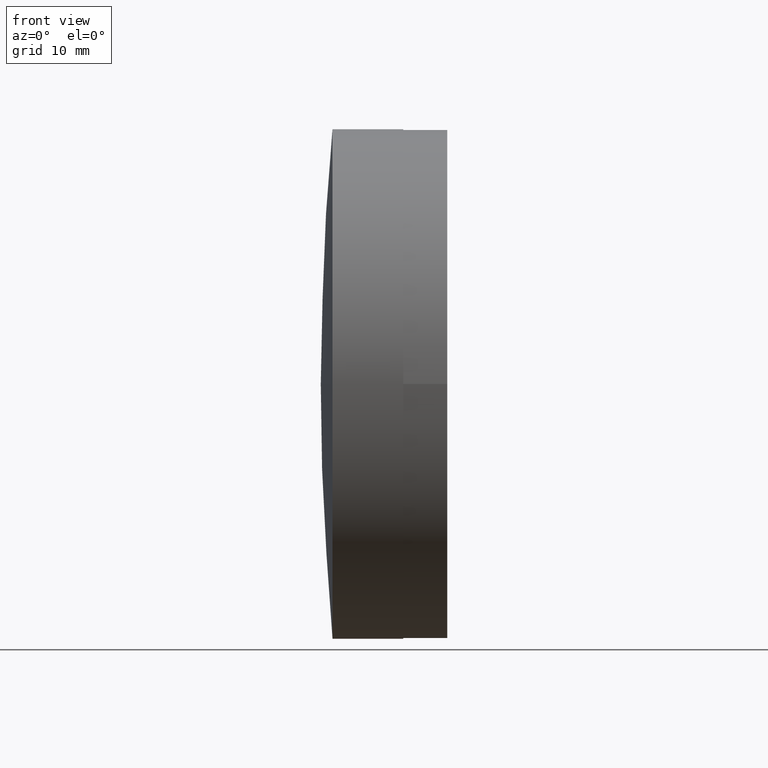
[diagram: clean part render]
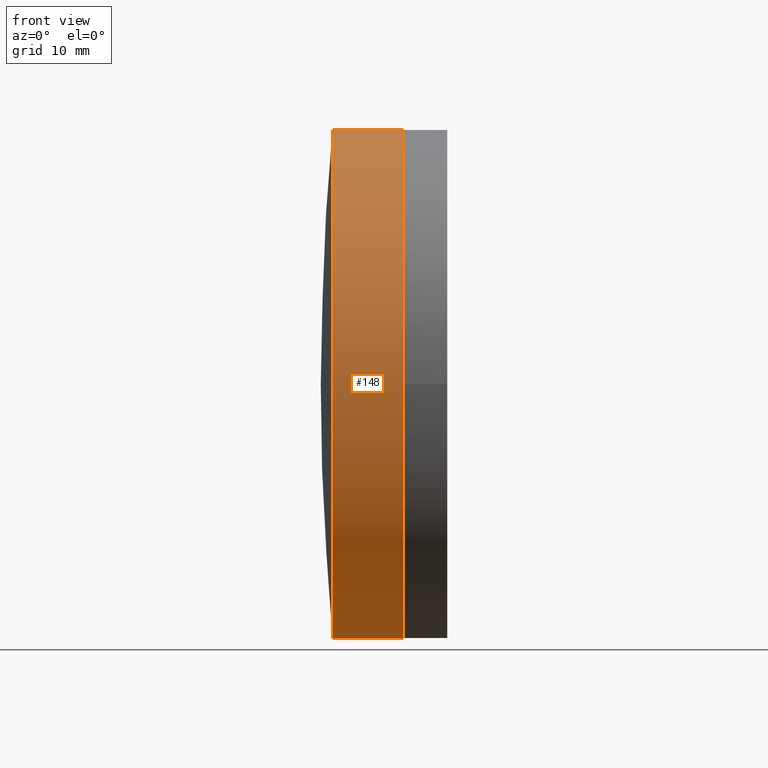
[diagram: same view with one face highlighted and labeled with its STEP entity id]
A machine part, front view. The second image highlights one B-rep face of the part: STEP entity #148.
In plain terms, the highlighted cylindrical surface (partial cylindrical patch) has radius 25.4 mm, axis along (-1, -0, -0).
Its self-contained STEP definition (entity closure, byte-faithful):
#24 = CARTESIAN_POINT ( 'NONE',  ( -98.67517410788653365, 17.58894564919701153, 25.39999999999999858 ) ) ;
#26 = AXIS2_PLACEMENT_3D ( 'NONE', #64, #174, #321 ) ;
#27 = VERTEX_POINT ( 'NONE', #24 ) ;
#35 = CARTESIAN_POINT ( 'NONE',  ( -105.7255114087630972, 17.58894564919701509, -25.39999999999999858 ) ) ;
#37 = CARTESIAN_POINT ( 'NONE',  ( -98.67517410788653365, 17.58894564919701153, 0.000000000000000000 ) ) ;
#43 = CARTESIAN_POINT ( 'NONE',  ( -98.67517410788653365, 17.58894564919701153, 0.000000000000000000 ) ) ;
#49 = VECTOR ( 'NONE', #119, 1000.000000000000000 ) ;
#58 = AXIS2_PLACEMENT_3D ( 'NONE', #301, #240, #362 ) ;
#64 = CARTESIAN_POINT ( 'NONE',  ( -106.8949775309884274, 17.58894564919701153, 0.000000000000000000 ) ) ;
#72 = DIRECTION ( 'NONE',  ( -1.000000000000000000, -0.000000000000000000, -0.000000000000000000 ) ) ;
#81 = ORIENTED_EDGE ( 'NONE', *, *, #124, .F. ) ;
#100 = CARTESIAN_POINT ( 'NONE',  ( -98.67517410788651944, -7.811054350803045665, -3.110602869834283965E-15 ) ) ;
#101 = EDGE_LOOP ( 'NONE', ( #81, #190, #348, #309, #248, #201 ) ) ;
#112 = VERTEX_POINT ( 'NONE', #315 ) ;
#114 = VERTEX_POINT ( 'NONE', #35 ) ;
#115 = DIRECTION ( 'NONE',  ( -1.000000000000000000, -0.000000000000000000, -0.000000000000000000 ) ) ;
#117 = FACE_OUTER_BOUND ( 'NONE', #101, .T. ) ;
#119 = DIRECTION ( 'NONE',  ( -1.000000000000000000, -0.000000000000000000, -0.000000000000000000 ) ) ;
#122 = VECTOR ( 'NONE', #115, 1000.000000000000000 ) ;
#124 = EDGE_CURVE ( 'NONE', #132, #114, #351, .T. ) ;
#125 = CARTESIAN_POINT ( 'NONE',  ( -105.7255114087630972, 17.58894564919701153, 25.39999999999999858 ) ) ;
#132 = VERTEX_POINT ( 'NONE', #381 ) ;
#148 = ADVANCED_FACE ( 'NONE', ( #117 ), #229, .T. ) ;
#149 = DIRECTION ( 'NONE',  ( -1.000000000000000000, -0.000000000000000000, -0.000000000000000000 ) ) ;
#150 = EDGE_CURVE ( 'NONE', #27, #251, #253, .T. ) ;
#174 = DIRECTION ( 'NONE',  ( -1.000000000000000000, -0.000000000000000000, -0.000000000000000000 ) ) ;
#177 = CARTESIAN_POINT ( 'NONE',  ( -106.8949775309884274, 17.58894564919701153, 25.39999999999999858 ) ) ;
#186 = EDGE_CURVE ( 'NONE', #112, #251, #215, .T. ) ;
#190 = ORIENTED_EDGE ( 'NONE', *, *, #282, .T. ) ;
#201 = ORIENTED_EDGE ( 'NONE', *, *, #376, .F. ) ;
#215 = CIRCLE ( 'NONE', #306, 25.39999999999999858 ) ;
#229 = CYLINDRICAL_SURFACE ( 'NONE', #26, 25.39999999999999858 ) ;
#234 = DIRECTION ( 'NONE',  ( 0.000000000000000000, 0.000000000000000000, 1.000000000000000000 ) ) ;
#237 = AXIS2_PLACEMENT_3D ( 'NONE', #37, #355, #234 ) ;
#240 = DIRECTION ( 'NONE',  ( -1.000000000000000000, -0.000000000000000000, -0.000000000000000000 ) ) ;
#247 = CIRCLE ( 'NONE', #303, 25.39999999999999858 ) ;
#248 = ORIENTED_EDGE ( 'NONE', *, *, #186, .F. ) ;
#251 = VERTEX_POINT ( 'NONE', #125 ) ;
#253 = LINE ( 'NONE', #177, #122 ) ;
#260 = VERTEX_POINT ( 'NONE', #100 ) ;
#263 = DIRECTION ( 'NONE',  ( 0.000000000000000000, 0.000000000000000000, 1.000000000000000000 ) ) ;
#265 = DIRECTION ( 'NONE',  ( 0.000000000000000000, 0.000000000000000000, 1.000000000000000000 ) ) ;
#282 = EDGE_CURVE ( 'NONE', #132, #260, #247, .T. ) ;
#290 = CARTESIAN_POINT ( 'NONE',  ( -106.8949775309884274, 17.58894564919701509, -25.39999999999999858 ) ) ;
#295 = EDGE_CURVE ( 'NONE', #260, #27, #358, .T. ) ;
#301 = CARTESIAN_POINT ( 'NONE',  ( -105.7255114087630972, 17.58894564919701153, 0.000000000000000000 ) ) ;
#303 = AXIS2_PLACEMENT_3D ( 'NONE', #43, #72, #265 ) ;
#306 = AXIS2_PLACEMENT_3D ( 'NONE', #323, #149, #263 ) ;
#309 = ORIENTED_EDGE ( 'NONE', *, *, #150, .T. ) ;
#315 = CARTESIAN_POINT ( 'NONE',  ( -105.7255114087630972, -7.811054350803045665, -3.110602869834283965E-15 ) ) ;
#321 = DIRECTION ( 'NONE',  ( 0.000000000000000000, 0.000000000000000000, 1.000000000000000000 ) ) ;
#323 = CARTESIAN_POINT ( 'NONE',  ( -105.7255114087630972, 17.58894564919701153, 0.000000000000000000 ) ) ;
#333 = CIRCLE ( 'NONE', #58, 25.39999999999999858 ) ;
#348 = ORIENTED_EDGE ( 'NONE', *, *, #295, .T. ) ;
#351 = LINE ( 'NONE', #290, #49 ) ;
#355 = DIRECTION ( 'NONE',  ( -1.000000000000000000, -0.000000000000000000, -0.000000000000000000 ) ) ;
#358 = CIRCLE ( 'NONE', #237, 25.39999999999999858 ) ;
#362 = DIRECTION ( 'NONE',  ( 0.000000000000000000, 0.000000000000000000, 1.000000000000000000 ) ) ;
#376 = EDGE_CURVE ( 'NONE', #114, #112, #333, .T. ) ;
#381 = CARTESIAN_POINT ( 'NONE',  ( -98.67517410788653365, 17.58894564919701509, -25.39999999999999858 ) ) ;